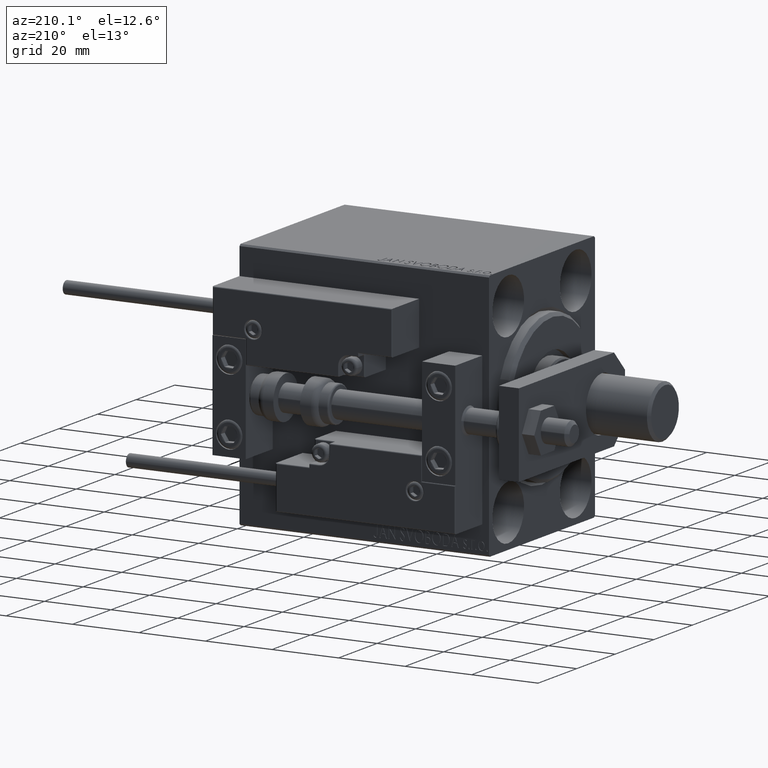
[diagram: clean part render]
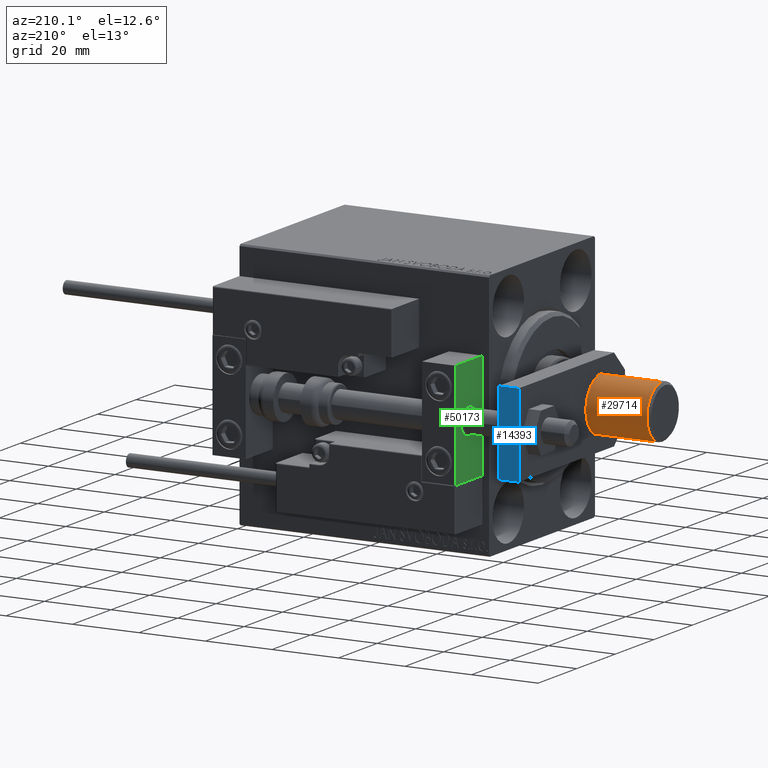
[diagram: same view with three faces highlighted in distinct colors, each labeled with its STEP entity id]
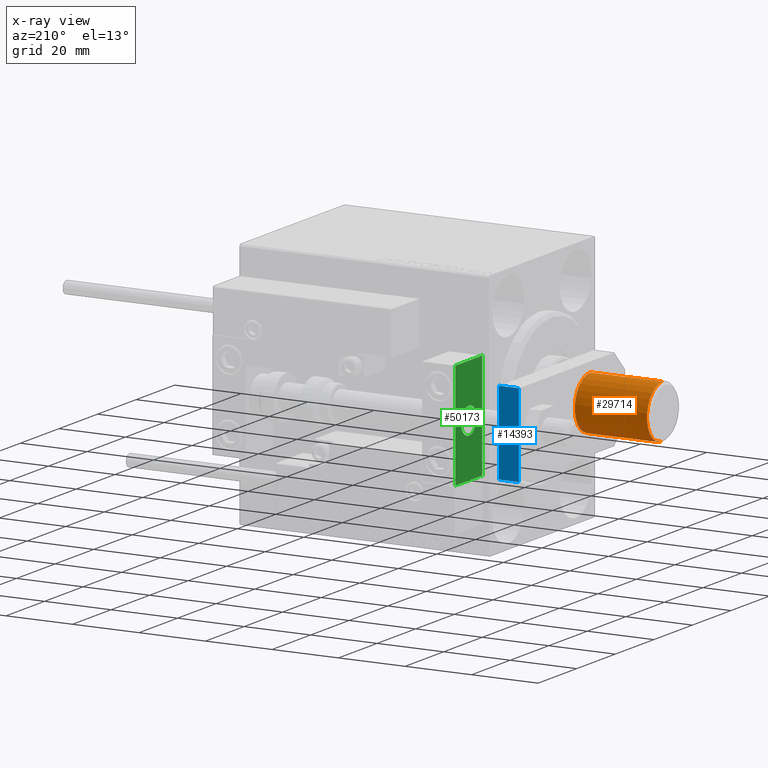
[diagram: x-ray of the same camera — body ghosted, the three highlighted faces saturated]
A machine part, auxiliary view with three faces highlighted in distinct colors.
The next image is the same camera in x-ray (body ghosted, the three faces saturated) — at least one of them is partly hidden behind the body in this view.
Their STEP definitions:

[orange] entity #29714 — the highlighted cylindrical surface (edge-blend (fillet) strip) has radius 8 mm, axis along (-1, -0, 0).
#6 = DIRECTION ( 'NONE',  ( 0.000000000000000000, 0.000000000000000000, 1.000000000000000000 ) ) ;
#909 = VERTEX_POINT ( 'NONE', #6880 ) ;
#1070 = CARTESIAN_POINT ( 'NONE',  ( -8.000000000000000000, 0.000000000000000000, 22.50000000000000000 ) ) ;
#1091 = CIRCLE ( 'NONE', #43728, 8.000000000000000000 ) ;
#2972 = CARTESIAN_POINT ( 'NONE',  ( 8.000000000000000000, 9.797174393178823685E-16, 22.50000000000000000 ) ) ;
#6303 = EDGE_LOOP ( 'NONE', ( #14761, #8872, #27527, #13191 ) ) ;
#6397 = AXIS2_PLACEMENT_3D ( 'NONE', #42844, #26686, #34902 ) ;
#6880 = CARTESIAN_POINT ( 'NONE',  ( 8.000000000000000000, 9.797174393178823685E-16, 0.8000000000000160316 ) ) ;
#8202 = DIRECTION ( 'NONE',  ( 1.000000000000000000, 0.000000000000000000, 0.000000000000000000 ) ) ;
#8872 = ORIENTED_EDGE ( 'NONE', *, *, #23630, .T. ) ;
#10170 = DIRECTION ( 'NONE',  ( -0.000000000000000000, -0.000000000000000000, -1.000000000000000000 ) ) ;
#10275 = VECTOR ( 'NONE', #10170, 1000.000000000000000 ) ;
#11277 = FACE_OUTER_BOUND ( 'NONE', #6303, .T. ) ;
#11523 = DIRECTION ( 'NONE',  ( -0.000000000000000000, -0.000000000000000000, 1.000000000000000000 ) ) ;
#11724 = EDGE_CURVE ( 'NONE', #47073, #35417, #46280, .T. ) ;
#13191 = ORIENTED_EDGE ( 'NONE', *, *, #11724, .F. ) ;
#14761 = ORIENTED_EDGE ( 'NONE', *, *, #15421, .F. ) ;
#15421 = EDGE_CURVE ( 'NONE', #40173, #47073, #1091, .T. ) ;
#18292 = CARTESIAN_POINT ( 'NONE',  ( -8.000000000000000000, 0.000000000000000000, 22.50000000000000000 ) ) ;
#22619 = CARTESIAN_POINT ( 'NONE',  ( 0.000000000000000000, 0.000000000000000000, 22.50000000000000000 ) ) ;
#23630 = EDGE_CURVE ( 'NONE', #40173, #909, #38160, .T. ) ;
#23746 = CIRCLE ( 'NONE', #41765, 8.000000000000000000 ) ;
#26686 = DIRECTION ( 'NONE',  ( -0.000000000000000000, -0.000000000000000000, -1.000000000000000000 ) ) ;
#27188 = CYLINDRICAL_SURFACE ( 'NONE', #6397, 8.000000000000000000 ) ;
#27527 = ORIENTED_EDGE ( 'NONE', *, *, #33683, .T. ) ;
#29714 = ADVANCED_FACE ( 'NONE', ( #11277 ), #27188, .T. ) ;
#33683 = EDGE_CURVE ( 'NONE', #909, #35417, #23746, .T. ) ;
#34902 = DIRECTION ( 'NONE',  ( -1.000000000000000000, 0.000000000000000000, 0.000000000000000000 ) ) ;
#35155 = CARTESIAN_POINT ( 'NONE',  ( 0.000000000000000000, 0.000000000000000000, 0.8000000000000160316 ) ) ;
#35365 = CARTESIAN_POINT ( 'NONE',  ( 8.000000000000000000, 9.797174393178823685E-16, 22.50000000000000000 ) ) ;
#35417 = VERTEX_POINT ( 'NONE', #43232 ) ;
#38160 = LINE ( 'NONE', #2972, #10275 ) ;
#40173 = VERTEX_POINT ( 'NONE', #35365 ) ;
#41765 = AXIS2_PLACEMENT_3D ( 'NONE', #35155, #11523, #8202 ) ;
#42681 = DIRECTION ( 'NONE',  ( -0.000000000000000000, -0.000000000000000000, -1.000000000000000000 ) ) ;
#42844 = CARTESIAN_POINT ( 'NONE',  ( 0.000000000000000000, 0.000000000000000000, 22.50000000000000000 ) ) ;
#43232 = CARTESIAN_POINT ( 'NONE',  ( -8.000000000000000000, 0.000000000000000000, 0.8000000000000160316 ) ) ;
#43728 = AXIS2_PLACEMENT_3D ( 'NONE', #22619, #6, #46480 ) ;
#46280 = LINE ( 'NONE', #18292, #46901 ) ;
#46480 = DIRECTION ( 'NONE',  ( 1.000000000000000000, 0.000000000000000000, 0.000000000000000000 ) ) ;
#46901 = VECTOR ( 'NONE', #42681, 1000.000000000000000 ) ;
#47073 = VERTEX_POINT ( 'NONE', #1070 ) ;

[blue] entity #14393 — the highlighted planar face has unit normal (0, -1, 0).
#852 = DIRECTION ( 'NONE',  ( -0.000000000000000000, -0.000000000000000000, -1.000000000000000000 ) ) ;
#3833 = ORIENTED_EDGE ( 'NONE', *, *, #36642, .T. ) ;
#4511 = CARTESIAN_POINT ( 'NONE',  ( -12.49999999999999822, 55.00000000000000000, 0.000000000000000000 ) ) ;
#4636 = VERTEX_POINT ( 'NONE', #4511 ) ;
#7203 = CARTESIAN_POINT ( 'NONE',  ( 12.50000000000000000, 55.00000000000000000, 6.000000000000000000 ) ) ;
#8272 = LINE ( 'NONE', #44187, #32144 ) ;
#10281 = LINE ( 'NONE', #49549, #26829 ) ;
#10291 = PLANE ( 'NONE',  #26445 ) ;
#14137 = FACE_OUTER_BOUND ( 'NONE', #15519, .T. ) ;
#14393 = ADVANCED_FACE ( 'NONE', ( #14137 ), #10291, .F. ) ;
#14444 = VERTEX_POINT ( 'NONE', #32031 ) ;
#14991 = CARTESIAN_POINT ( 'NONE',  ( 12.50000000000000000, 55.00000000000000000, 6.000000000000000000 ) ) ;
#15519 = EDGE_LOOP ( 'NONE', ( #3833, #43256, #17130, #22972 ) ) ;
#17130 = ORIENTED_EDGE ( 'NONE', *, *, #33054, .F. ) ;
#19080 = DIRECTION ( 'NONE',  ( -1.000000000000000000, 0.000000000000000000, 0.000000000000000000 ) ) ;
#22972 = ORIENTED_EDGE ( 'NONE', *, *, #26898, .T. ) ;
#26183 = VECTOR ( 'NONE', #19080, 1000.000000000000000 ) ;
#26445 = AXIS2_PLACEMENT_3D ( 'NONE', #7203, #46219, #30817 ) ;
#26829 = VECTOR ( 'NONE', #34166, 1000.000000000000000 ) ;
#26898 = EDGE_CURVE ( 'NONE', #40651, #46073, #27827, .T. ) ;
#27827 = LINE ( 'NONE', #28075, #39915 ) ;
#28075 = CARTESIAN_POINT ( 'NONE',  ( 12.50000000000000000, 55.00000000000000000, 6.000000000000000000 ) ) ;
#30817 = DIRECTION ( 'NONE',  ( 0.000000000000000000, -0.000000000000000000, -1.000000000000000000 ) ) ;
#32031 = CARTESIAN_POINT ( 'NONE',  ( -12.49999999999999822, 55.00000000000000000, 6.000000000000000000 ) ) ;
#32144 = VECTOR ( 'NONE', #47281, 1000.000000000000000 ) ;
#33054 = EDGE_CURVE ( 'NONE', #40651, #14444, #50144, .T. ) ;
#34166 = DIRECTION ( 'NONE',  ( -0.000000000000000000, -0.000000000000000000, -1.000000000000000000 ) ) ;
#36642 = EDGE_CURVE ( 'NONE', #46073, #4636, #8272, .T. ) ;
#39915 = VECTOR ( 'NONE', #852, 1000.000000000000000 ) ;
#40651 = VERTEX_POINT ( 'NONE', #43265 ) ;
#43256 = ORIENTED_EDGE ( 'NONE', *, *, #50542, .F. ) ;
#43265 = CARTESIAN_POINT ( 'NONE',  ( 12.50000000000000000, 55.00000000000000000, 6.000000000000000000 ) ) ;
#44187 = CARTESIAN_POINT ( 'NONE',  ( 12.50000000000000000, 55.00000000000000000, 0.000000000000000000 ) ) ;
#46073 = VERTEX_POINT ( 'NONE', #47783 ) ;
#46219 = DIRECTION ( 'NONE',  ( 0.000000000000000000, -1.000000000000000000, 0.000000000000000000 ) ) ;
#47281 = DIRECTION ( 'NONE',  ( -1.000000000000000000, 0.000000000000000000, 0.000000000000000000 ) ) ;
#47783 = CARTESIAN_POINT ( 'NONE',  ( 12.50000000000000000, 55.00000000000000000, 0.000000000000000000 ) ) ;
#49549 = CARTESIAN_POINT ( 'NONE',  ( -12.49999999999999822, 55.00000000000000000, 6.000000000000000000 ) ) ;
#50144 = LINE ( 'NONE', #14991, #26183 ) ;
#50542 = EDGE_CURVE ( 'NONE', #14444, #4636, #10281, .T. ) ;

[green] entity #50173 — the highlighted planar face has unit normal (1, 0, -0).
#11 = CARTESIAN_POINT ( 'NONE',  ( 10.00000000000000000, 7.000000000000000000, 15.99999999999999289 ) ) ;
#1583 = EDGE_CURVE ( 'NONE', #26124, #28087, #20521, .T. ) ;
#2274 = CARTESIAN_POINT ( 'NONE',  ( 10.00000000000000000, 7.000000000000000000, -16.00000000000000711 ) ) ;
#3857 = EDGE_LOOP ( 'NONE', ( #41126, #37778 ) ) ;
#4613 = AXIS2_PLACEMENT_3D ( 'NONE', #40276, #39265, #40033 ) ;
#5903 = ORIENTED_EDGE ( 'NONE', *, *, #6101, .F. ) ;
#6101 = EDGE_CURVE ( 'NONE', #23667, #24247, #15932, .T. ) ;
#6740 = EDGE_CURVE ( 'NONE', #26123, #34130, #42976, .T. ) ;
#6741 = ORIENTED_EDGE ( 'NONE', *, *, #1583, .T. ) ;
#7964 = AXIS2_PLACEMENT_3D ( 'NONE', #24801, #47914, #36621 ) ;
#9213 = VECTOR ( 'NONE', #36192, 1000.000000000000000 ) ;
#9552 = DIRECTION ( 'NONE',  ( 0.000000000000000000, 0.000000000000000000, 1.000000000000000000 ) ) ;
#15668 = EDGE_CURVE ( 'NONE', #24247, #28087, #29998, .T. ) ;
#15932 = LINE ( 'NONE', #11, #19217 ) ;
#17086 = PLANE ( 'NONE',  #7964 ) ;
#19217 = VECTOR ( 'NONE', #46994, 1000.000000000000000 ) ;
#20521 = LINE ( 'NONE', #44388, #9213 ) ;
#21014 = CIRCLE ( 'NONE', #4613, 4.000000000000000000 ) ;
#21914 = CARTESIAN_POINT ( 'NONE',  ( 10.00000000000000000, -7.000000000000000000, 15.99999999999999289 ) ) ;
#23667 = VERTEX_POINT ( 'NONE', #25829 ) ;
#23966 = DIRECTION ( 'NONE',  ( 0.000000000000000000, -1.000000000000000000, 0.000000000000000000 ) ) ;
#24247 = VERTEX_POINT ( 'NONE', #29807 ) ;
#24264 = EDGE_LOOP ( 'NONE', ( #6741, #46792, #5903, #39183 ) ) ;
#24801 = CARTESIAN_POINT ( 'NONE',  ( 10.00000000000000000, 0.000000000000000000, 0.000000000000000000 ) ) ;
#24931 = AXIS2_PLACEMENT_3D ( 'NONE', #40631, #28816, #9552 ) ;
#25673 = EDGE_CURVE ( 'NONE', #34130, #26123, #21014, .T. ) ;
#25829 = CARTESIAN_POINT ( 'NONE',  ( 10.00000000000000000, 7.000000000000000000, 15.99999999999999289 ) ) ;
#26123 = VERTEX_POINT ( 'NONE', #33474 ) ;
#26124 = VERTEX_POINT ( 'NONE', #21914 ) ;
#27368 = VECTOR ( 'NONE', #49508, 1000.000000000000000 ) ;
#28087 = VERTEX_POINT ( 'NONE', #43498 ) ;
#28816 = DIRECTION ( 'NONE',  ( -1.000000000000000000, 0.000000000000000000, 0.000000000000000000 ) ) ;
#29807 = CARTESIAN_POINT ( 'NONE',  ( 10.00000000000000000, 7.000000000000000000, -16.00000000000000711 ) ) ;
#29998 = LINE ( 'NONE', #2274, #27368 ) ;
#30900 = LINE ( 'NONE', #39634, #45007 ) ;
#32480 = EDGE_CURVE ( 'NONE', #23667, #26124, #30900, .T. ) ;
#32519 = FACE_OUTER_BOUND ( 'NONE', #24264, .T. ) ;
#33474 = CARTESIAN_POINT ( 'NONE',  ( 10.00000000000000000, 4.898587196589412829E-16, -4.000000000000000000 ) ) ;
#34130 = VERTEX_POINT ( 'NONE', #49071 ) ;
#36192 = DIRECTION ( 'NONE',  ( 0.000000000000000000, 0.000000000000000000, -1.000000000000000000 ) ) ;
#36621 = DIRECTION ( 'NONE',  ( -0.000000000000000000, 0.000000000000000000, 1.000000000000000000 ) ) ;
#37778 = ORIENTED_EDGE ( 'NONE', *, *, #6740, .T. ) ;
#39183 = ORIENTED_EDGE ( 'NONE', *, *, #32480, .T. ) ;
#39265 = DIRECTION ( 'NONE',  ( -1.000000000000000000, 0.000000000000000000, 0.000000000000000000 ) ) ;
#39634 = CARTESIAN_POINT ( 'NONE',  ( 10.00000000000000000, 7.000000000000000000, 15.99999999999999289 ) ) ;
#39987 = FACE_BOUND ( 'NONE', #3857, .T. ) ;
#40033 = DIRECTION ( 'NONE',  ( 0.000000000000000000, 0.000000000000000000, 1.000000000000000000 ) ) ;
#40276 = CARTESIAN_POINT ( 'NONE',  ( 10.00000000000000000, 0.000000000000000000, 0.000000000000000000 ) ) ;
#40631 = CARTESIAN_POINT ( 'NONE',  ( 10.00000000000000000, 0.000000000000000000, 0.000000000000000000 ) ) ;
#41126 = ORIENTED_EDGE ( 'NONE', *, *, #25673, .T. ) ;
#42976 = CIRCLE ( 'NONE', #24931, 4.000000000000000000 ) ;
#43498 = CARTESIAN_POINT ( 'NONE',  ( 10.00000000000000000, -7.000000000000000000, -16.00000000000000711 ) ) ;
#44388 = CARTESIAN_POINT ( 'NONE',  ( 10.00000000000000000, -7.000000000000000000, 15.99999999999999289 ) ) ;
#45007 = VECTOR ( 'NONE', #23966, 1000.000000000000000 ) ;
#46792 = ORIENTED_EDGE ( 'NONE', *, *, #15668, .F. ) ;
#46994 = DIRECTION ( 'NONE',  ( 0.000000000000000000, 0.000000000000000000, -1.000000000000000000 ) ) ;
#47914 = DIRECTION ( 'NONE',  ( -1.000000000000000000, 0.000000000000000000, -0.000000000000000000 ) ) ;
#49071 = CARTESIAN_POINT ( 'NONE',  ( 10.00000000000000000, 0.000000000000000000, 4.000000000000000000 ) ) ;
#49508 = DIRECTION ( 'NONE',  ( 0.000000000000000000, -1.000000000000000000, 0.000000000000000000 ) ) ;
#50173 = ADVANCED_FACE ( 'NONE', ( #39987, #32519 ), #17086, .F. ) ;